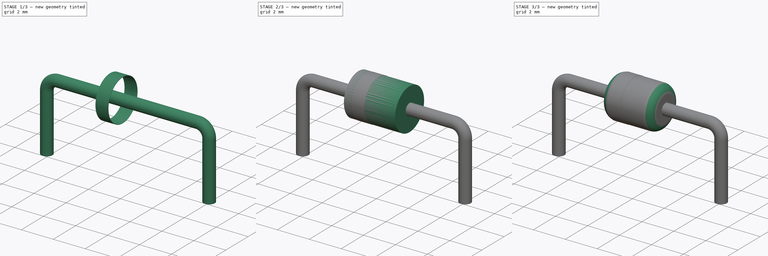
[diagram: build sequence overview — one tinted view per stage of 3, left to right]
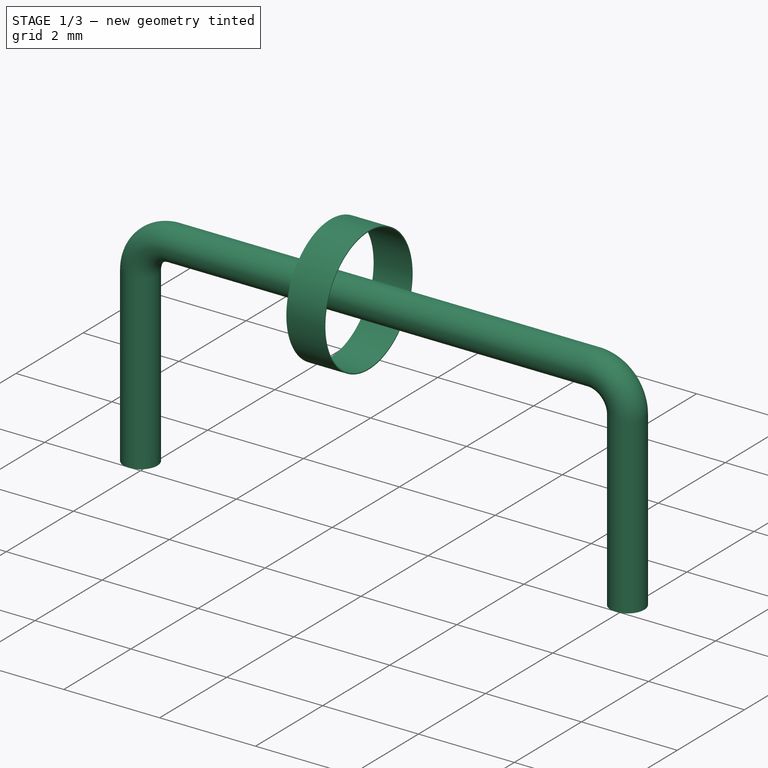
[diagram: stage 1 of 3 — iso view after this stage's code; geometry added in this stage tinted green]
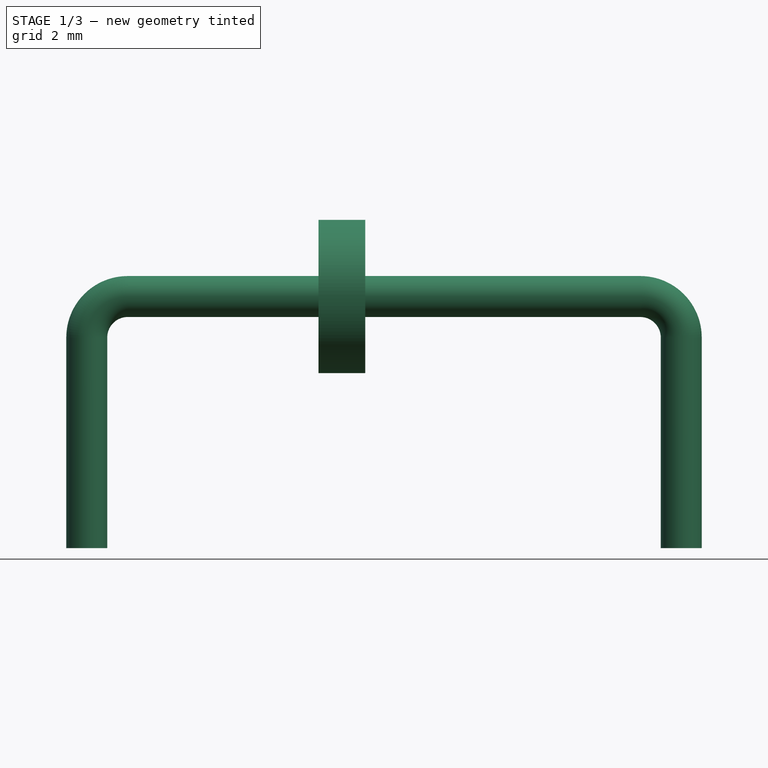
[diagram: stage 1 of 3 — front view after this stage's code; geometry added in this stage tinted green]
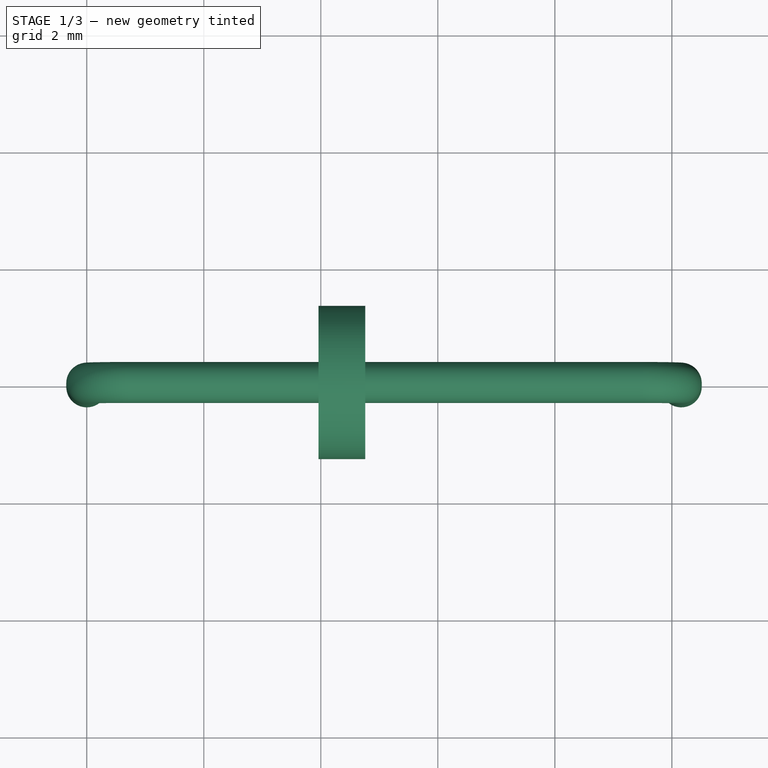
[diagram: stage 1 of 3 — top view after this stage's code; geometry added in this stage tinted green]
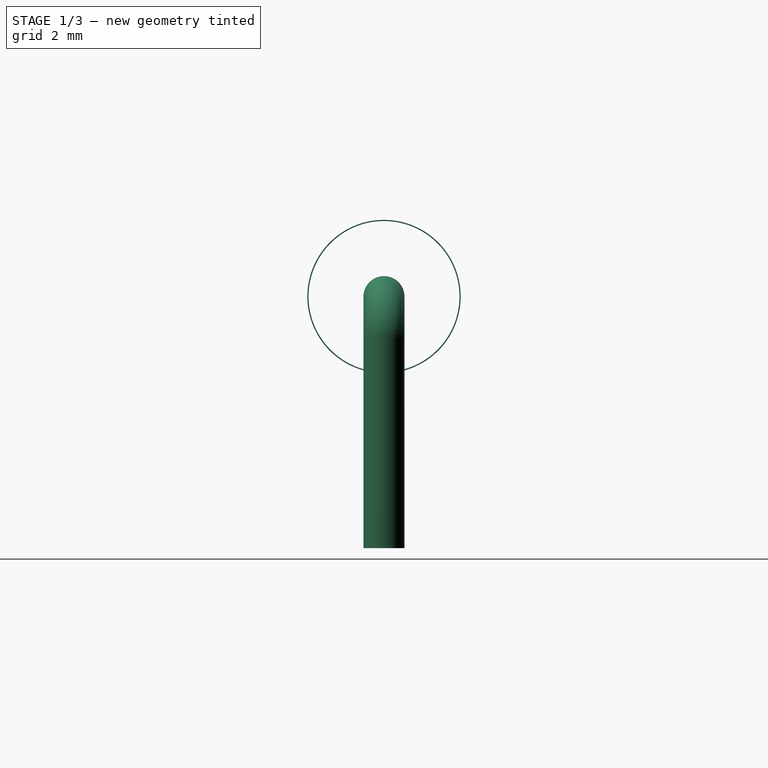
[diagram: stage 1 of 3 — right view after this stage's code; geometry added in this stage tinted green]
FCSTD DOCUMENT  (FreeCAD 0.17R12018 (Git))
Label: D_T-1_P10.16mm_Horizontal
License: All rights reserved
LicenseURL: http://en.wikipedia.org/wiki/All_rights_reserved
objects: Sketcher::SketchObject×4, PartDesign::Revolution×2, PartDesign::Fillet×1, Spreadsheet::Sheet×1, Part::Sweep×1, Part::MultiFuse×1, Part::Feature×1
note: 12 computed .brp shape members not serialized (recipe doc carries the construction recipe); baked Part::Feature solids carry a one-line shape summary decoded from their .brp

FEATURE [Sketcher::SketchObject] Sketch003
  MapMode = 5
  Placement = pos=(0,0,0) rot=(1,0,0;1.5708rad)
  expr: Constraints[12] = Spreadsheet.L * 0.25
  expr: Constraints[13] = Spreadsheet.d / 2 - 0.01
  expr: Constraints[14] = (Spreadsheet.RM - Spreadsheet.L) / 2 + 0.14999999999999999 * Spreadsheet.L
  expr: Constraints[2] = Spreadsheet.d / 2 + 0.5
  sketch-geometry (5):
    g0: LineSegment [constr] StartX=0 StartY=1.8 StartZ=0 EndX=4.17342 EndY=1.8 EndZ=0
    g1: LineSegment StartX=3.96 StartY=3.11 StartZ=0 EndX=4.76 EndY=3.11 EndZ=0
    g2: LineSegment StartX=4.76 StartY=3.11 StartZ=0 EndX=4.76 EndY=3.09 EndZ=0
    g3: LineSegment StartX=4.76 StartY=3.09 StartZ=0 EndX=3.96 EndY=3.09 EndZ=0
    g4: LineSegment StartX=3.96 StartY=3.09 StartZ=0 EndX=3.96 EndY=3.11 EndZ=0
  constraints (15):
    c: PointOnObject(g0,g-2)
    c: Horizontal(g0)
    c: DistanceY(g-1,g0) = 1.8
    c: Coincident(g1,g2)
    c: Coincident(g2,g3)
    c: Coincident(g3,g4)
    c: Coincident(g4,g1)
    c: Horizontal(g1)
    c: Horizontal(g3)
    c: Vertical(g2)
    c: Vertical(g4)
    c: DistanceY(g2,g1) = 0.02
    c: DistanceX(g1,g1) = 0.8
    c: DistanceY(g0,g2) = 1.29
    c: DistanceX(g0,g3) = 3.96
FEATURE [PartDesign::Revolution] Revolution001
  Angle = 360
  Axis = (4.17342,0,0)
  Base = (0,0,1.8)
  Placement = pos=(0,0,0) rot=(1,0,0;1.5708rad)
  Profile = -> Sketch003
  ReferenceAxis = -> Sketch003 [Axis0]
FEATURE [Sketcher::SketchObject] Sketch
  MapMode = 5
  Placement = pos=(0,0,-2) rot=(0,0,1;0rad)
  expr: Constraints[1] = Spreadsheet.d_wire / 2
  sketch-geometry (1):
    g0: Circle CenterX=0 CenterY=0 CenterZ=0 NormalX=0 NormalY=0 NormalZ=1 Radius=0.35
  constraints (2):
    c: Coincident(g0,g-1)
    c: Radius(g0) = 0.35
FEATURE [Spreadsheet::Sheet] Spreadsheet
  cells = A1=L; B1(L)=3.2000000000000002; A2=d; B2(d)=2.6000000000000001; C2(d2)=0; A3=RM; B3(RM)=10.16; C3(shuntPinsRM)=0; A4=d_wire; B4(d_wire)=0.69999999999999996
FEATURE [Part::Sweep] Sweep
  Frenet = false
  Sections = -> [Sketch]
  Solid = true
  Spine = -> Sketch001 [Edge1,Edge2,Edge3,Edge4,Edge5]
  Transition = 1
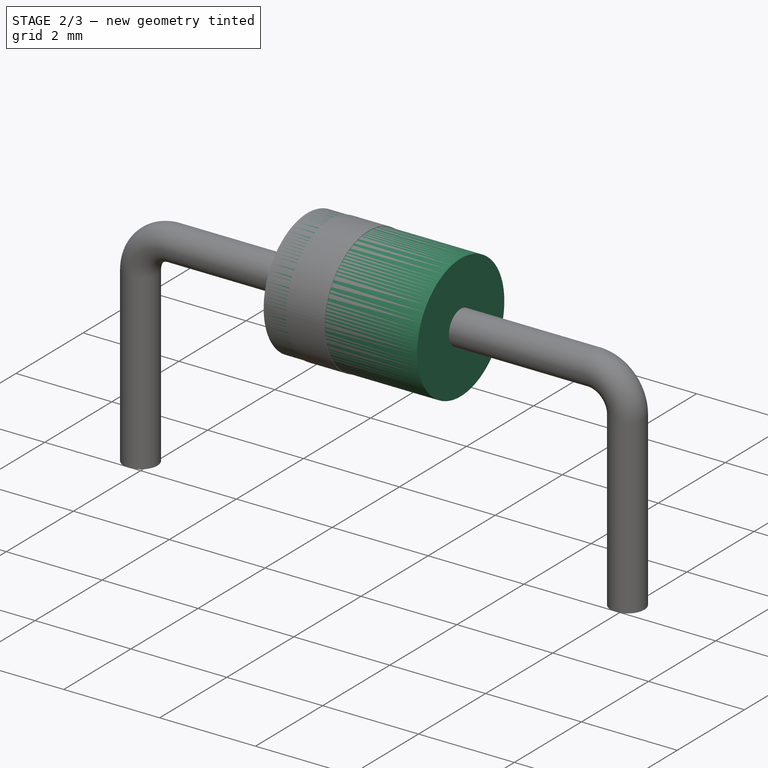
[diagram: stage 2 of 3 — iso view after this stage's code; geometry added in this stage tinted green]
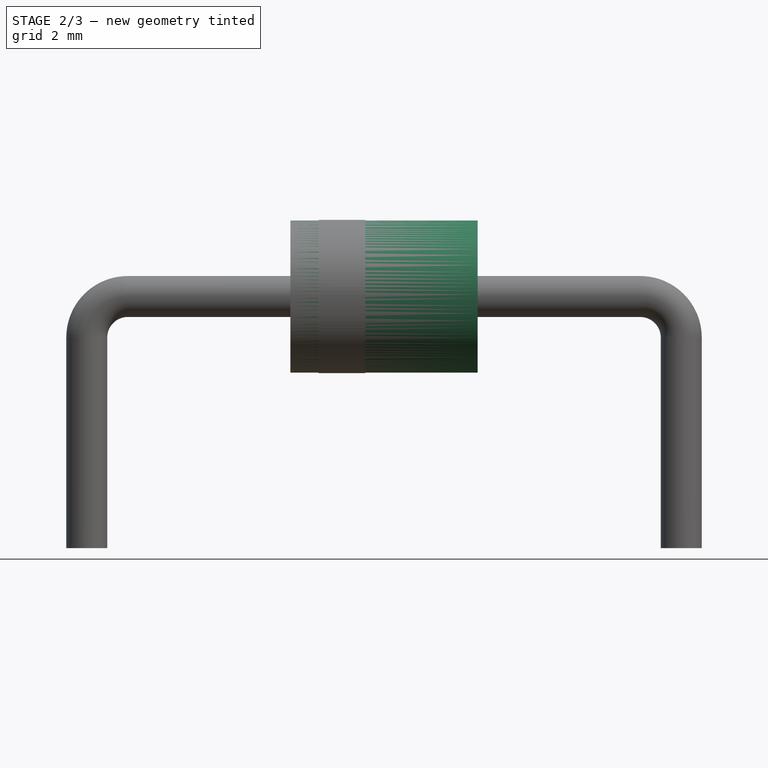
[diagram: stage 2 of 3 — front view after this stage's code; geometry added in this stage tinted green]
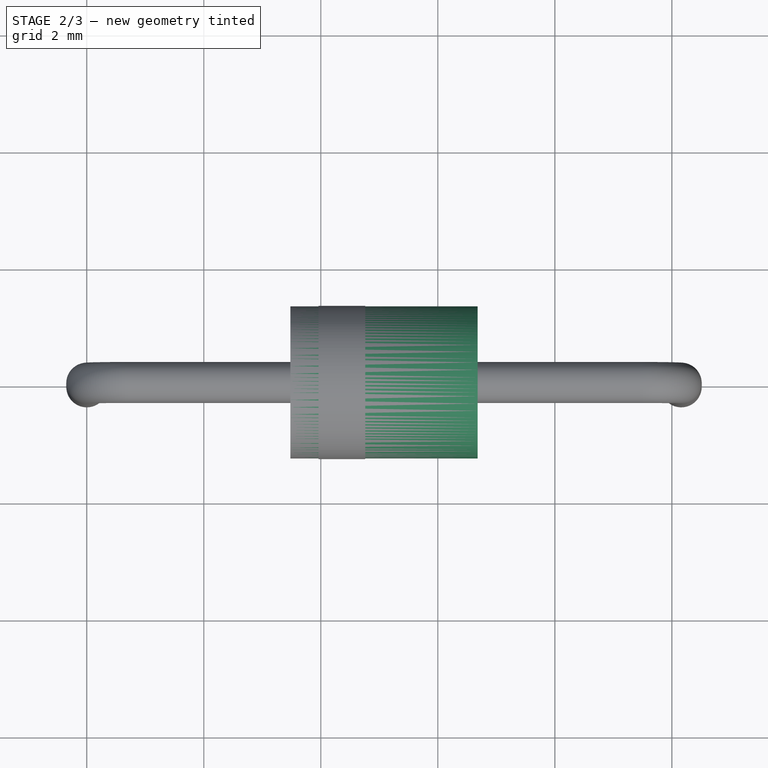
[diagram: stage 2 of 3 — top view after this stage's code; geometry added in this stage tinted green]
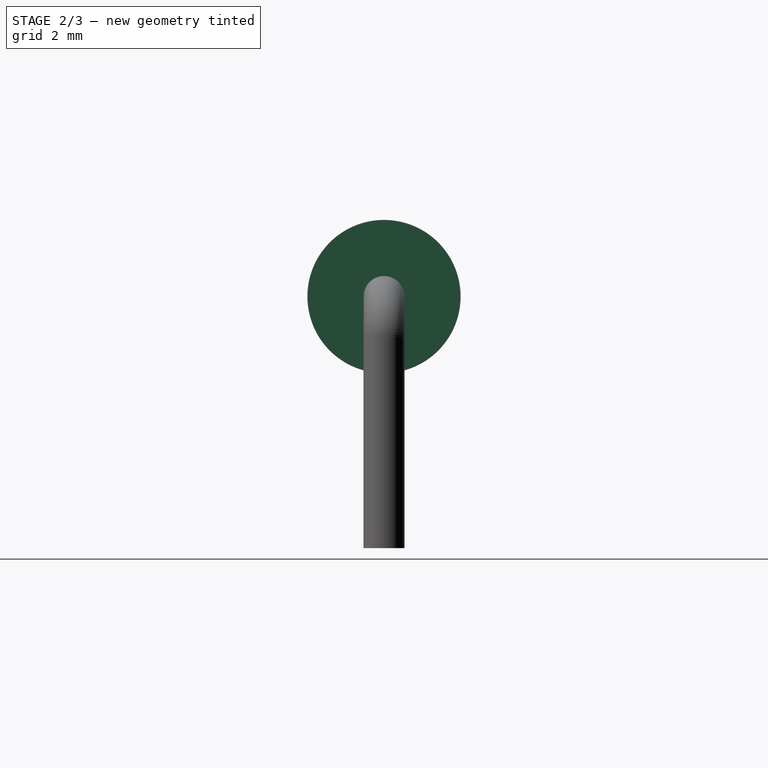
[diagram: stage 2 of 3 — right view after this stage's code; geometry added in this stage tinted green]
FEATURE [Sketcher::SketchObject] Sketch001
  MapMode = 5
  Placement = pos=(0,0,0) rot=(1,0,0;1.5708rad)
  expr: Constraints[10] = Spreadsheet.d / 2 + 0.5
  expr: Constraints[3] = Spreadsheet.RM
  expr: Constraints[14] = Spreadsheet.d_wire
  expr: Constraints[13] = Spreadsheet.d_wire
  sketch-geometry (5):
    g0: LineSegment StartX=0.7 StartY=1.8 StartZ=0 EndX=9.46 EndY=1.8 EndZ=0
    g1: ArcOfCircle CenterX=9.46 CenterY=1.1 CenterZ=0 NormalX=0 NormalY=0 NormalZ=1 Radius=0.7 StartAngle=0 EndAngle=1.5708
    g2: ArcOfCircle CenterX=0.7 CenterY=1.1 CenterZ=0 NormalX=0 NormalY=0 NormalZ=1 Radius=0.7 StartAngle=1.5708 EndAngle=3.14159
    g3: LineSegment StartX=0 StartY=1.1 StartZ=0 EndX=0 EndY=-2.5 EndZ=0
    g4: LineSegment StartX=10.16 StartY=1.1 StartZ=0 EndX=10.16 EndY=-2.5 EndZ=0
  constraints (18):
    c: Horizontal(g0)
    c: Coincident(g1,g0)
    c: Coincident(g2,g0)
    c: DistanceX(g2,g1) = 10.16
    c: Vertical(g3)
    c: Vertical(g4)
    c: PointOnObject(g-1,g3)
    c: DistanceY(g3,g-1) = 2.5
    c: DistanceY(g3,g4) = 0
    c: Coincident(g2,g3)
    c: DistanceY(g-1,g0) = 1.8
    c: DistanceY(g2,g2) = 0
    c: DistanceY(g1,g1) = 0
    c: DistanceX(g2,g0) = 0.7
    c: DistanceX(g0,g1) = 0.7
    c: Coincident(g4,g1)
    c: DistanceX(g0,g2) = 0
    c: DistanceX(g1,g0) = 0
FEATURE [Sketcher::SketchObject] Sketch002  label="Axis0"
  MapMode = 5
  Placement = pos=(0,0,0) rot=(1,0,0;1.5708rad)
  expr: Constraints[1] = Spreadsheet.L
  expr: Constraints[8] = Spreadsheet.d / 2 + 0.5
  expr: Constraints[7] = (Spreadsheet.RM - Spreadsheet.L) / 2
  expr: Constraints[11] = Spreadsheet.d / 2
  sketch-geometry (7):
    g0: LineSegment [constr] StartX=3.48 StartY=1.8 StartZ=0 EndX=6.68 EndY=1.8 EndZ=0
    g1: LineSegment [constr] StartX=3.48 StartY=1.8 StartZ=0 EndX=3.48 EndY=0 EndZ=0
    g2: LineSegment [constr] StartX=3.48 StartY=0 StartZ=0 EndX=0 EndY=0 EndZ=0
    g3: LineSegment StartX=3.48 StartY=1.8 StartZ=0 EndX=6.68 EndY=1.8 EndZ=0
    g4: LineSegment StartX=3.48 StartY=1.8 StartZ=0 EndX=3.48 EndY=3.1 EndZ=0
    g5: LineSegment StartX=6.68 StartY=1.8 StartZ=0 EndX=6.68 EndY=3.1 EndZ=0
    g6: LineSegment StartX=3.48 StartY=3.1 StartZ=0 EndX=6.68 EndY=3.1 EndZ=0
  constraints (19):
    c: Horizontal(g0)
    c: DistanceX(g0,g0) = 3.2
    c: Coincident(g1,g0)
    c: Vertical(g1)
    c: Coincident(g2,g1)
    c: Coincident(g2,g-1)
    c: Horizontal(g2)
    c: DistanceX(g2,g2) = 3.48
    c: DistanceY(g1,g1) = 1.8
    c: Coincident(g3,g0)
    c: Vertical(g4)
    c: DistanceY(g4,g4) = 1.3
    c: Coincident(g4,g0)
    c: Coincident(g5,g0)
    c: Vertical(g5)
    c: Equal(g5,g4)
    c: Coincident(g3,g0)
    c: Coincident(g6,g4)
    c: Coincident(g6,g5)
FEATURE [PartDesign::Revolution] Revolution
  Angle = 360
  Axis = (3.2,0,0)
  Base = (3.48,0,1.8)
  Placement = pos=(0,0,0) rot=(1,0,0;1.5708rad)
  Profile = -> Sketch002
  ReferenceAxis = -> Sketch002 [Axis0]
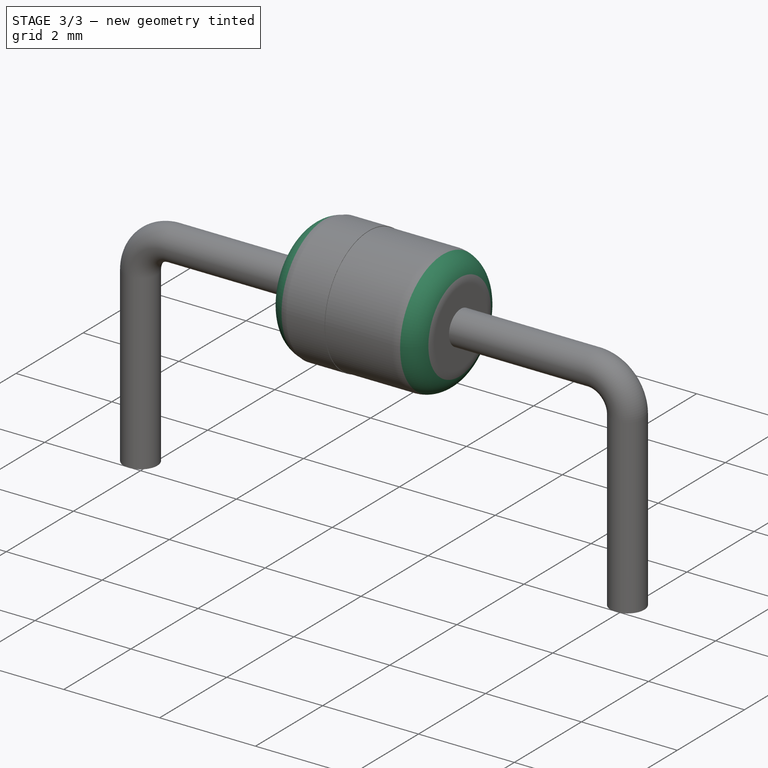
[diagram: stage 3 of 3 — iso view after this stage's code; geometry added in this stage tinted green]
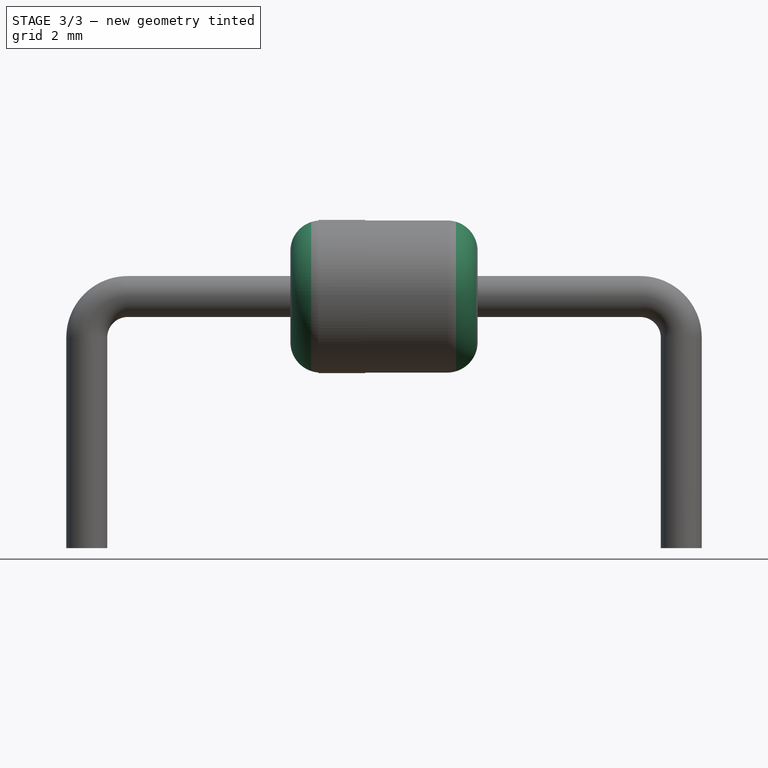
[diagram: stage 3 of 3 — front view after this stage's code; geometry added in this stage tinted green]
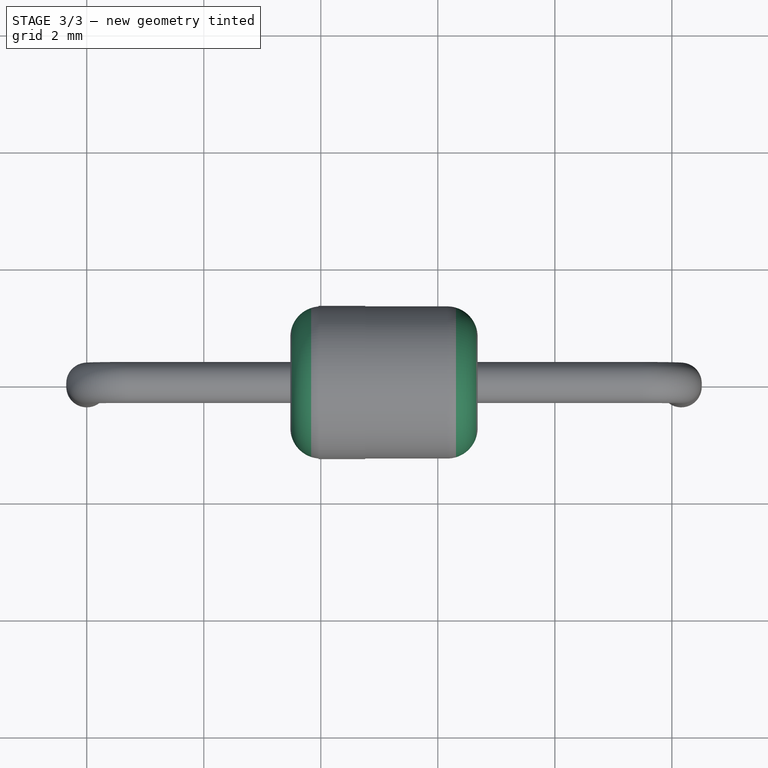
[diagram: stage 3 of 3 — top view after this stage's code; geometry added in this stage tinted green]
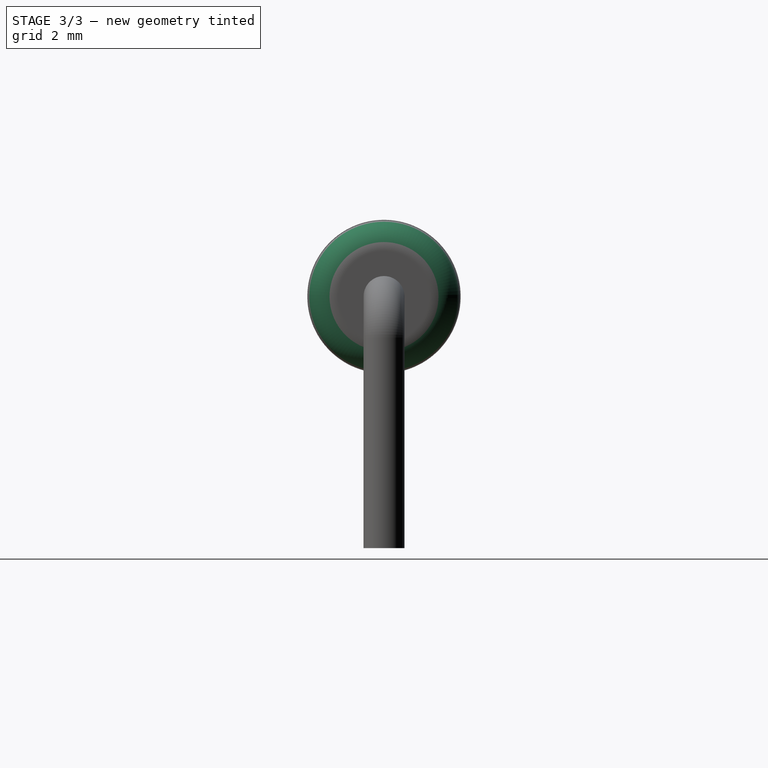
[diagram: stage 3 of 3 — right view after this stage's code; geometry added in this stage tinted green]
FEATURE [PartDesign::Fillet] Fillet
  Base = -> Revolution [Edge2,Edge1]
  Placement = pos=(0,0,0) rot=(1,0,0;1.5708rad)
  Radius = 0.52
  expr: Radius = Spreadsheet.d * 0.20000000000000001
FEATURE [Part::MultiFuse] Fillet_mp_cp  label="Fillet_fd"
  Shapes = -> [Fillet,Revolution001,Sweep]
FEATURE [Part::Feature] Shape  label="D_T-1_P10.16mm_Horizontal"
  shape: bbox 11.03 x 2.814 x 5.707 mm, 16 faces (baked)
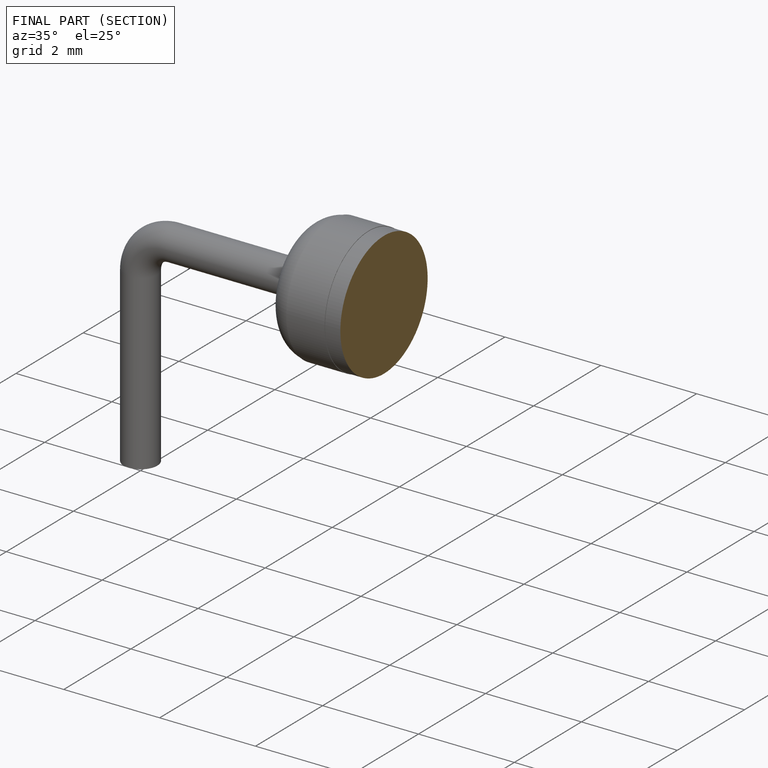
[diagram: finished part — half-section view (interior)]
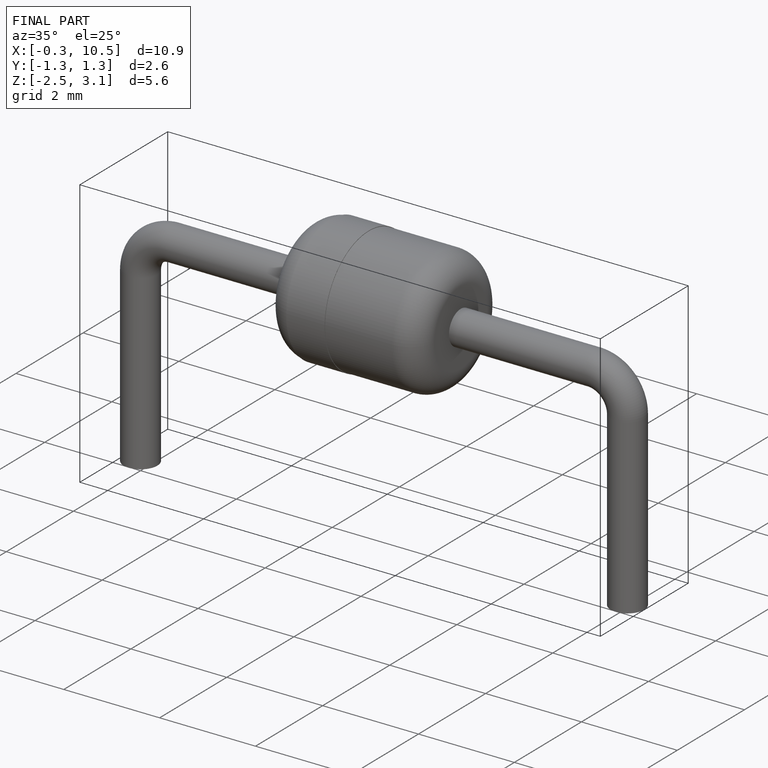
[diagram: finished part — iso view with bounding-box wireframe]
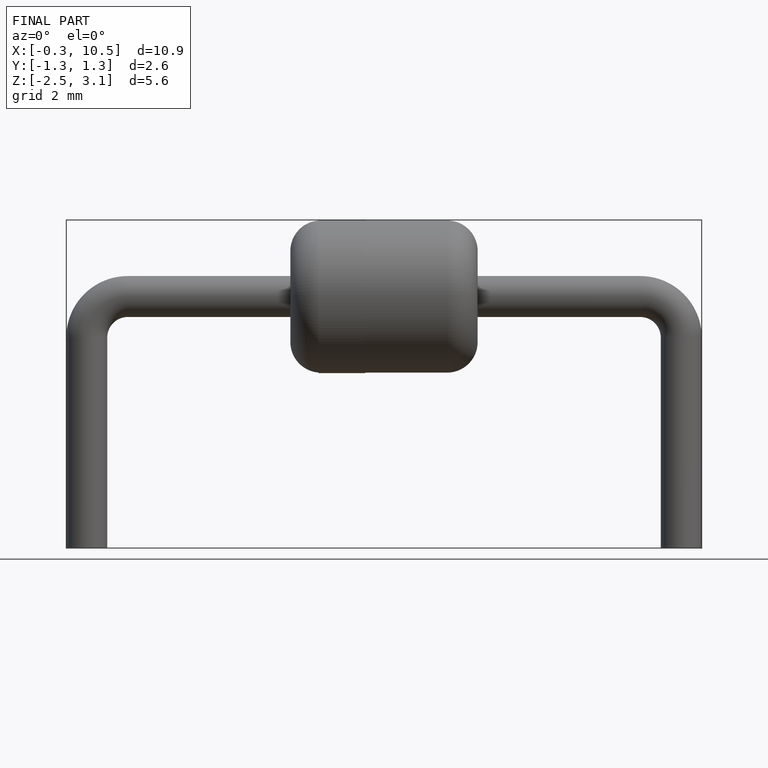
[diagram: finished part — front view with bounding-box wireframe]
